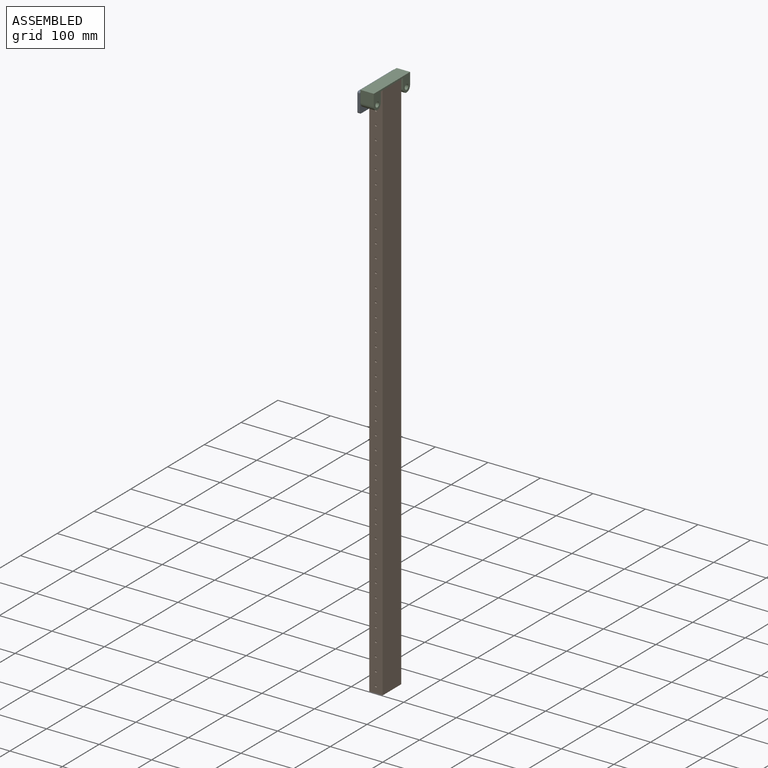
[diagram: assembled view]
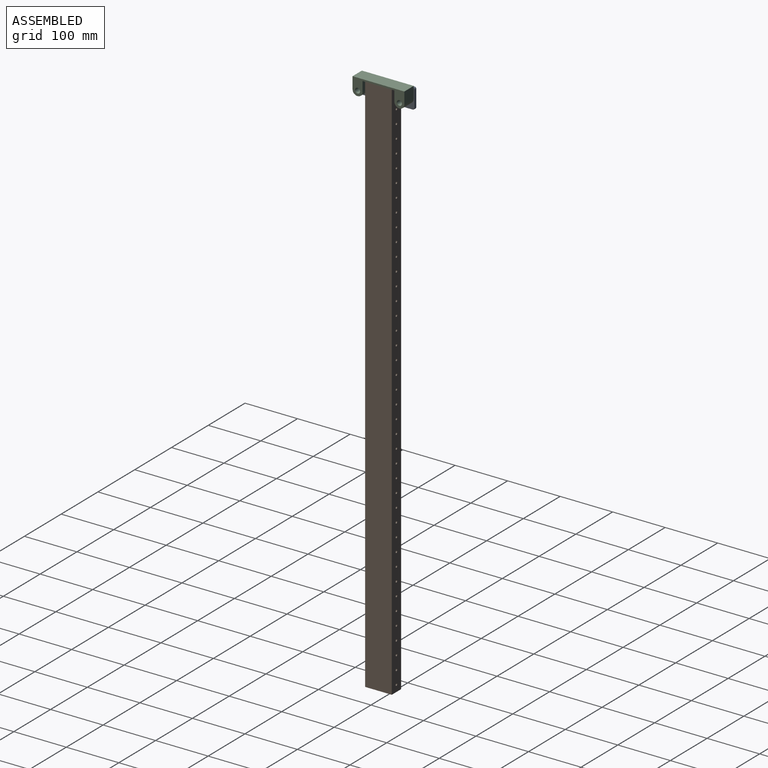
[diagram: assembled view, second angle]
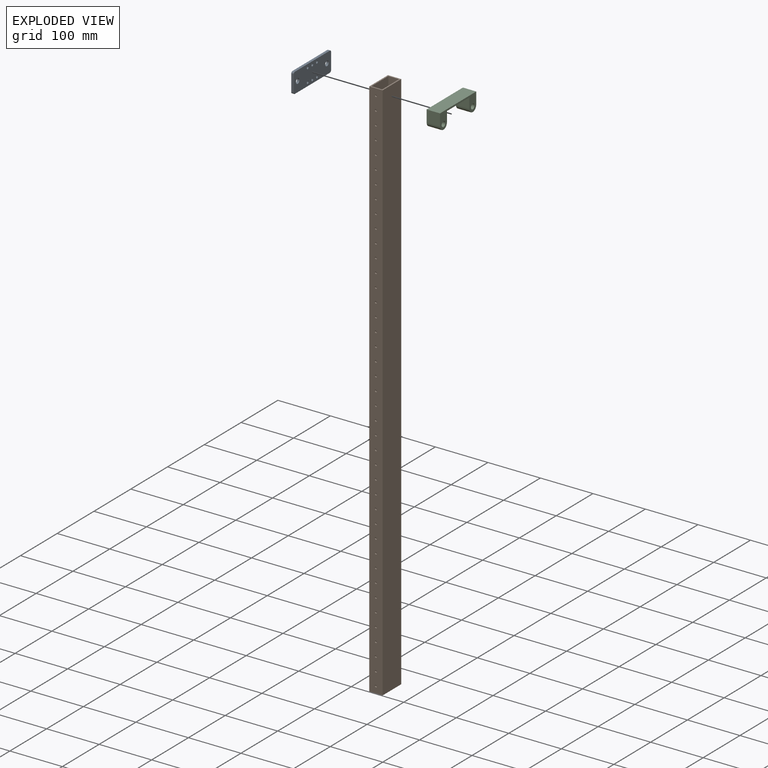
[diagram: exploded view]
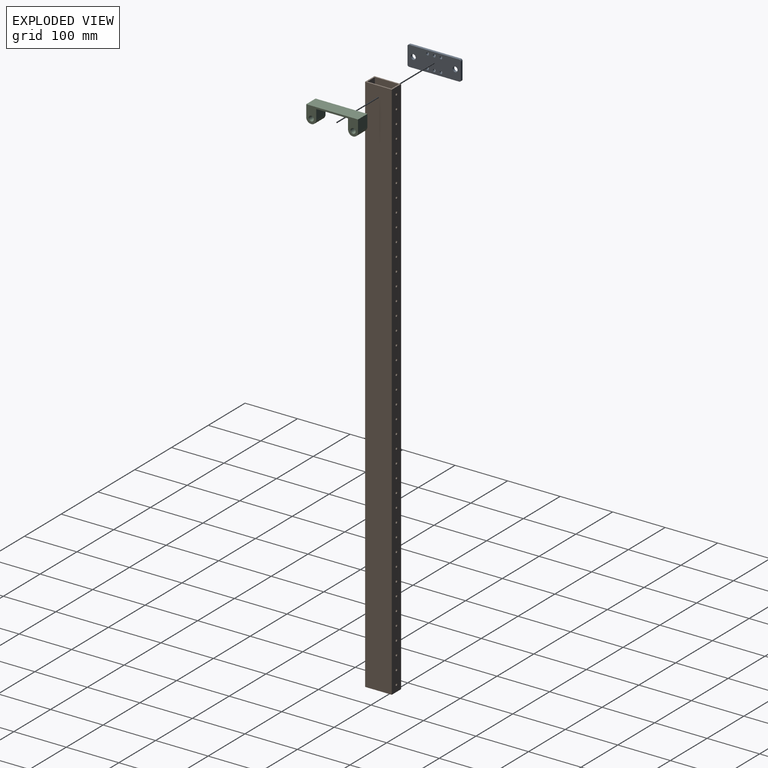
[diagram: exploded view, second angle]
ASSEMBLY  parts=3 mates=2
PART A: 18 faces, bbox 101.6x38.1x4.8 mm
  f0: plane 101.6x38.1mm, normal (0,0,1), area 3603mm2, adj f2,f3,f4,f5,f6,f7,f8,f9
  f1: plane 101.6x38.1mm, normal (0,0,-1), area 3603mm2, adj f2,f3,f4,f5,f6,f7,f8,f9
  f2: plane 31.75x4.76mm, normal (-1,0,0), area 151.2mm2, adj f0,f1,f14,f16
  f3: plane 95.25x4.76mm, normal (0,-1,0), area 453.6mm2, adj f0,f1,f16,f17
  f4: plane 31.75x4.76mm, normal (1,0,0), area 151.2mm2, adj f0,f1,f15,f17
  f5: plane 95.25x4.76mm, normal (0,1,0), area 453.6mm2, adj f0,f1,f14,f15
  f6: cylinder r=4.76mm len=9.53mm, axis (0,0,-1), area 142.5mm2, adj f0,f1
  f7: cylinder r=4.76mm len=9.53mm, axis (0,0,-1), area 142.5mm2, adj f0,f1
  f8: cylinder r=2.49mm len=4.98mm, axis (0,0,-1), area 74.5mm2, adj f0,f1
  f9: cylinder r=2.49mm len=4.98mm, axis (0,0,-1), area 74.5mm2, adj f0,f1
  f10: cylinder r=2.49mm len=4.98mm, axis (0,0,-1), area 74.5mm2, adj f0,f1
  f11: cylinder r=2.49mm len=4.98mm, axis (0,0,-1), area 74.5mm2, adj f0,f1
  f12: cylinder r=2.49mm len=4.98mm, axis (0,0,-1), area 74.5mm2, adj f0,f1
  f13: cylinder r=2.49mm len=4.98mm, axis (0,0,-1), area 74.5mm2, adj f0,f1
  f14: cylinder r=3.17mm len=4.76mm, axis (0,0,-1), area 23.8mm2, adj f0,f1,f2,f5
  f15: cylinder r=3.17mm len=4.76mm, axis (0,0,-1), area 23.8mm2, adj f0,f1,f4,f5
  f16: cylinder r=3.17mm len=4.76mm, axis (0,0,-1), area 23.8mm2, adj f0,f1,f2,f3
  f17: cylinder r=3.17mm len=4.76mm, axis (0,0,-1), area 23.8mm2, adj f0,f1,f3,f4
PART B: 92 faces, bbox 50.8x25.4x1041.4 mm
  f0: cylinder r=2.07mm len=4.14mm, axis (1,0,0), area 33mm2, adj f82,f83
  f1: cylinder r=2.07mm len=4.14mm, axis (1,0,0), area 33mm2, adj f80,f85
  f2: cylinder r=2.07mm len=4.14mm, axis (1,0,0), area 33mm2, adj f82,f83
  f3: cylinder r=2.07mm len=4.14mm, axis (1,0,0), area 33mm2, adj f80,f85
  f4: cylinder r=2.07mm len=4.14mm, axis (1,0,0), area 33mm2, adj f82,f83
  f5: cylinder r=2.07mm len=4.14mm, axis (1,0,0), area 33mm2, adj f80,f85
  f6: cylinder r=2.07mm len=4.14mm, axis (1,0,0), area 33mm2, adj f82,f83
  f7: cylinder r=2.07mm len=4.14mm, axis (1,0,0), area 33mm2, adj f80,f85
  f8: cylinder r=2.07mm len=4.14mm, axis (1,0,0), area 33mm2, adj f82,f83
  f9: cylinder r=2.07mm len=4.14mm, axis (1,0,0), area 33mm2, adj f80,f85
  f10: cylinder r=2.07mm len=4.14mm, axis (1,0,0), area 33mm2, adj f82,f83
  f11: cylinder r=2.07mm len=4.14mm, axis (1,0,0), area 33mm2, adj f80,f85
  f12: cylinder r=2.07mm len=4.14mm, axis (1,0,0), area 33mm2, adj f82,f83
  f13: cylinder r=2.07mm len=4.14mm, axis (1,0,0), area 33mm2, adj f80,f85
  f14: cylinder r=2.07mm len=4.14mm, axis (1,0,0), area 33mm2, adj f82,f83
  f15: cylinder r=2.07mm len=4.14mm, axis (1,0,0), area 33mm2, adj f80,f85
  f16: cylinder r=2.07mm len=4.14mm, axis (1,0,0), area 33mm2, adj f82,f83
  f17: cylinder r=2.07mm len=4.14mm, axis (1,0,0), area 33mm2, adj f80,f85
  f18: cylinder r=2.07mm len=4.14mm, axis (1,0,0), area 33mm2, adj f82,f83
  f19: cylinder r=2.07mm len=4.14mm, axis (1,0,0), area 33mm2, adj f80,f85
  f20: cylinder r=2.07mm len=4.14mm, axis (1,0,0), area 33mm2, adj f82,f83
  f21: cylinder r=2.07mm len=4.14mm, axis (1,0,0), area 33mm2, adj f80,f85
  f22: cylinder r=2.07mm len=4.14mm, axis (1,0,0), area 33mm2, adj f82,f83
  f23: cylinder r=2.07mm len=4.14mm, axis (1,0,0), area 33mm2, adj f80,f85
  f24: cylinder r=2.07mm len=4.14mm, axis (1,0,0), area 33mm2, adj f82,f83
  f25: cylinder r=2.07mm len=4.14mm, axis (1,0,0), area 33mm2, adj f80,f85
  f26: cylinder r=2.07mm len=4.14mm, axis (1,0,0), area 33mm2, adj f82,f83
  f27: cylinder r=2.07mm len=4.14mm, axis (1,0,0), area 33mm2, adj f80,f85
  f28: cylinder r=2.07mm len=4.14mm, axis (1,0,0), area 33mm2, adj f82,f83
  f29: cylinder r=2.07mm len=4.14mm, axis (1,0,0), area 33mm2, adj f80,f85
  f30: cylinder r=2.07mm len=4.14mm, axis (1,0,0), area 33mm2, adj f82,f83
  f31: cylinder r=2.07mm len=4.14mm, axis (1,0,0), area 33mm2, adj f80,f85
  f32: cylinder r=2.07mm len=4.14mm, axis (1,0,0), area 33mm2, adj f82,f83
  f33: cylinder r=2.07mm len=4.14mm, axis (1,0,0), area 33mm2, adj f80,f85
  f34: cylinder r=2.07mm len=4.14mm, axis (1,0,0), area 33mm2, adj f82,f83
  f35: cylinder r=2.07mm len=4.14mm, axis (1,0,0), area 33mm2, adj f80,f85
  f36: cylinder r=2.07mm len=4.14mm, axis (1,0,0), area 33mm2, adj f82,f83
  f37: cylinder r=2.07mm len=4.14mm, axis (1,0,0), area 33mm2, adj f80,f85
  f38: cylinder r=2.07mm len=4.14mm, axis (1,0,0), area 33mm2, adj f82,f83
  f39: cylinder r=2.07mm len=4.14mm, axis (1,0,0), area 33mm2, adj f80,f85
  f40: cylinder r=2.07mm len=4.14mm, axis (1,0,0), area 33mm2, adj f82,f83
  f41: cylinder r=2.07mm len=4.14mm, axis (1,0,0), area 33mm2, adj f80,f85
  f42: cylinder r=2.07mm len=4.14mm, axis (1,0,0), area 33mm2, adj f82,f83
  f43: cylinder r=2.07mm len=4.14mm, axis (1,0,0), area 33mm2, adj f80,f85
  f44: cylinder r=2.07mm len=4.14mm, axis (1,0,0), area 33mm2, adj f82,f83
  f45: cylinder r=2.07mm len=4.14mm, axis (1,0,0), area 33mm2, adj f80,f85
  f46: cylinder r=2.07mm len=4.14mm, axis (1,0,0), area 33mm2, adj f82,f83
  f47: cylinder r=2.07mm len=4.14mm, axis (1,0,0), area 33mm2, adj f80,f85
  f48: cylinder r=2.07mm len=4.14mm, axis (1,0,0), area 33mm2, adj f82,f83
  f49: cylinder r=2.07mm len=4.14mm, axis (1,0,0), area 33mm2, adj f80,f85
  f50: cylinder r=2.07mm len=4.14mm, axis (1,0,0), area 33mm2, adj f82,f83
  f51: cylinder r=2.07mm len=4.14mm, axis (1,0,0), area 33mm2, adj f80,f85
  f52: cylinder r=2.07mm len=4.14mm, axis (1,0,0), area 33mm2, adj f82,f83
  f53: cylinder r=2.07mm len=4.14mm, axis (1,0,0), area 33mm2, adj f80,f85
  f54: cylinder r=2.07mm len=4.14mm, axis (1,0,0), area 33mm2, adj f82,f83
  f55: cylinder r=2.07mm len=4.14mm, axis (1,0,0), area 33mm2, adj f80,f85
  f56: cylinder r=2.07mm len=4.14mm, axis (1,0,0), area 33mm2, adj f82,f83
  f57: cylinder r=2.07mm len=4.14mm, axis (1,0,0), area 33mm2, adj f80,f85
  f58: cylinder r=2.07mm len=4.14mm, axis (1,0,0), area 33mm2, adj f82,f83
  f59: cylinder r=2.07mm len=4.14mm, axis (1,0,0), area 33mm2, adj f80,f85
  f60: cylinder r=2.07mm len=4.14mm, axis (1,0,0), area 33mm2, adj f82,f83
  f61: cylinder r=2.07mm len=4.14mm, axis (1,0,0), area 33mm2, adj f80,f85
  f62: cylinder r=2.07mm len=4.14mm, axis (1,0,0), area 33mm2, adj f82,f83
  f63: cylinder r=2.07mm len=4.14mm, axis (1,0,0), area 33mm2, adj f80,f85
  f64: cylinder r=2.07mm len=4.14mm, axis (1,0,0), area 33mm2, adj f82,f83
  f65: cylinder r=2.07mm len=4.14mm, axis (1,0,0), area 33mm2, adj f80,f85
  f66: cylinder r=2.07mm len=4.14mm, axis (1,0,0), area 33mm2, adj f82,f83
  f67: cylinder r=2.07mm len=4.14mm, axis (1,0,0), area 33mm2, adj f80,f85
  f68: cylinder r=2.07mm len=4.14mm, axis (1,0,0), area 33mm2, adj f82,f83
  f69: cylinder r=2.07mm len=4.14mm, axis (1,0,0), area 33mm2, adj f80,f85
  f70: cylinder r=2.07mm len=4.14mm, axis (1,0,0), area 33mm2, adj f82,f83
  f71: cylinder r=2.07mm len=4.14mm, axis (1,0,0), area 33mm2, adj f80,f85
  f72: cylinder r=2.07mm len=4.14mm, axis (1,0,0), area 33mm2, adj f82,f83
  f73: cylinder r=2.07mm len=4.14mm, axis (1,0,0), area 33mm2, adj f80,f85
  f74: cylinder r=2.07mm len=4.14mm, axis (1,0,0), area 33mm2, adj f82,f83
  f75: cylinder r=2.07mm len=4.14mm, axis (1,0,0), area 33mm2, adj f80,f85
  f76: cylinder r=2.07mm len=4.14mm, axis (1,0,0), area 33mm2, adj f82,f83
  f77: cylinder r=2.07mm len=4.14mm, axis (1,0,0), area 33mm2, adj f80,f85
  f78: cylinder r=2.07mm len=4.14mm, axis (1,0,0), area 33mm2, adj f82,f83
  f79: cylinder r=2.07mm len=4.14mm, axis (1,0,0), area 33mm2, adj f80,f85
  f80: plane 1041.4x20.32mm, normal (-1,0,0), area 20609.3mm2, adj f1,f3,f5,f7,f9,f11,f13,f15
  f81: plane 1041.4x45.72mm, normal (0,1,0), area 47612.8mm2, adj f80,f82,f88,f89
  f82: plane 1041.4x20.32mm, normal (1,0,0), area 20609.3mm2, adj f0,f2,f4,f6,f8,f10,f12,f14
  f83: plane 1041.4x25.4mm, normal (-1,0,0), area 25899.6mm2, adj f0,f2,f4,f6,f8,f10,f12,f14
  f84: plane 1041.4x50.8mm, normal (0,-1,0), area 52903.1mm2, adj f83,f85,f88,f89
  f85: plane 1041.4x25.4mm, normal (1,0,0), area 25899.6mm2, adj f1,f3,f5,f7,f9,f11,f13,f15
  f86: plane 1041.4x50.8mm, normal (0,1,0), area 52903.1mm2, adj f83,f85,f88,f89
  f87: plane 1041.4x45.72mm, normal (0,-1,0), area 47612.8mm2, adj f80,f82,f88,f89
  f88: plane 50.8x25.4mm, normal (0,0,1), area 361.3mm2, adj f80,f81,f82,f83,f84,f85,f86,f87
  f89: plane 50.8x25.4mm, normal (0,0,-1), area 361.3mm2, adj f80,f81,f82,f83,f84,f85,f86,f87
  f90: cylinder r=2.07mm len=4.14mm, axis (1,0,0), area 33mm2, adj f80,f85
  f91: cylinder r=2.07mm len=4.14mm, axis (1,0,0), area 33mm2, adj f82,f83
PART C: 12 faces, bbox 25.4x98.7x31.8 mm
  f0: plane 25.4x22.23mm, normal (0,-1,0), area 564.5mm2, adj f1,f8,f10,f11
  f1: cylinder r=9.53mm len=25.4mm, axis (-1,0,0), area 760.1mm2, adj f0,f2,f10,f11
  f2: plane 25.4x19.05mm, normal (0,1,0), area 483.9mm2, adj f1,f3,f10,f11
  f3: plane 60.58x25.4mm, normal (0,0,-1), area 1538.7mm2, adj f2,f4,f10,f11
  f4: plane 25.4x19.05mm, normal (0,-1,0), area 483.9mm2, adj f3,f5,f10,f11
  f5: cylinder r=9.53mm len=25.4mm, axis (-1,0,0), area 760.1mm2, adj f4,f6,f10,f11
  f6: plane 25.4x22.23mm, normal (0,1,0), area 564.5mm2, adj f5,f8,f10,f11
  f7: cylinder r=4.85mm len=25.4mm, axis (-1,0,0), area 774.2mm2, adj f10,f11
  f8: plane 98.68x25.4mm, normal (0,0,1), area 2506.4mm2, adj f0,f6,f10,f11
  f9: cylinder r=4.85mm len=25.4mm, axis (-1,0,0), area 774.2mm2, adj f10,f11
  f10: plane 98.68x31.75mm, normal (1,0,0), area 1176.3mm2, adj f0,f1,f2,f3,f4,f5,f6,f7
  f11: plane 98.68x31.75mm, normal (-1,0,0), area 1176.3mm2, adj f0,f1,f2,f3,f4,f5,f6,f7
PLACE A rot(axis=(0.58,0.58,0.58),120deg) t=(-52.02,48.23,124.64)mm
PLACE B rot(axis=(0,0,-1),90deg) t=(-47.25,124.43,-878.66)mm
PLACE C t=(-47.25,109.96,118.29)mm
MATE fastened A.f0 <-> B.f84  axis (1,0,0) through (-47.25,99.03,162.74)mm
MATE fastened C.f5 <-> A.f7  axis (-1,0,0) through (-47.25,138.84,143.69)mm
